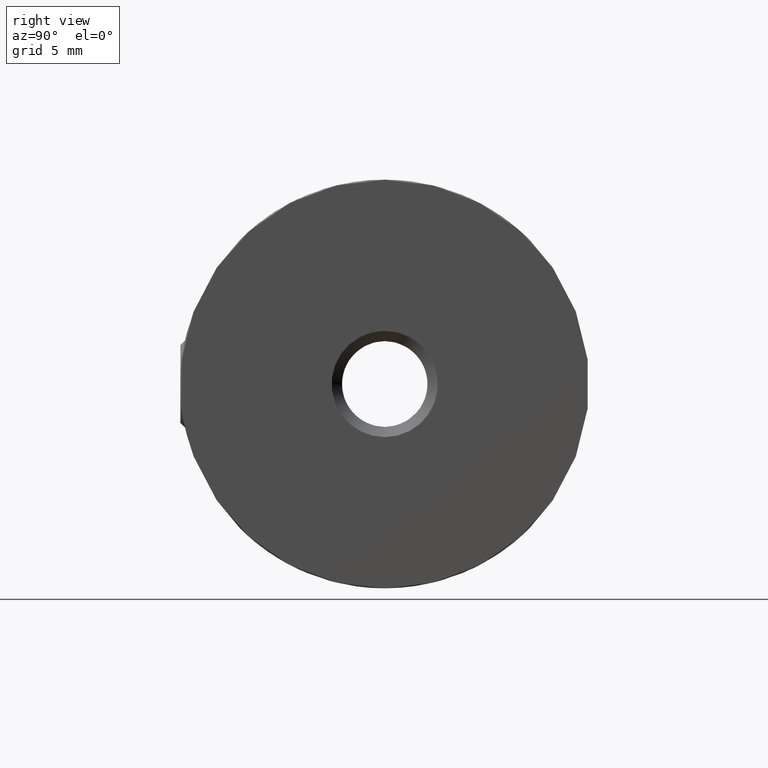
[diagram: clean part render]
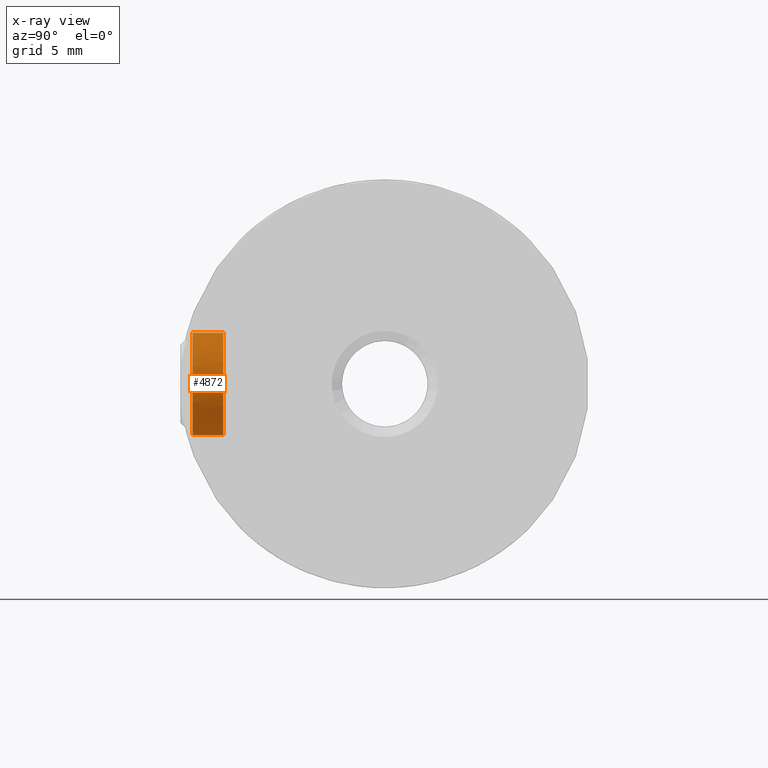
[diagram: x-ray — body ghosted, one internal face saturated and labeled with its STEP entity id]
A machine part, right view, then the same camera in x-ray: the body is ghosted and one INTERNAL B-rep face — a face not visible from any outside direction — is saturated and labeled: STEP entity #4872.
In plain terms, the highlighted cylindrical surface (partial cylindrical patch) has radius 2.5 mm, axis along (-0, 1, -0).
Its self-contained STEP definition (entity closure, byte-faithful):
#32 = CYLINDRICAL_SURFACE ( 'NONE', #3927, 2.500000000000000000 ) ;
#511 = DIRECTION ( 'NONE',  ( 0.000000000000000000, 0.000000000000000000, 1.000000000000000000 ) ) ;
#807 = ORIENTED_EDGE ( 'NONE', *, *, #11150, .T. ) ;
#1191 = CIRCLE ( 'NONE', #1555, 2.500000000000000000 ) ;
#1555 = AXIS2_PLACEMENT_3D ( 'NONE', #11062, #6524, #5341 ) ;
#1905 = LINE ( 'NONE', #13567, #10572 ) ;
#1995 = EDGE_CURVE ( 'NONE', #14791, #13390, #1905, .T. ) ;
#2078 = EDGE_CURVE ( 'NONE', #2701, #6468, #1191, .T. ) ;
#2155 = AXIS2_PLACEMENT_3D ( 'NONE', #7699, #10163, #14793 ) ;
#2192 = ORIENTED_EDGE ( 'NONE', *, *, #2078, .F. ) ;
#2698 = CARTESIAN_POINT ( 'NONE',  ( 3.000000000000000000, 3.061616997868383141E-16, -2.500000000000000000 ) ) ;
#2701 = VERTEX_POINT ( 'NONE', #6418 ) ;
#3912 = DIRECTION ( 'NONE',  ( -1.000000000000000000, -0.000000000000000000, -0.000000000000000000 ) ) ;
#3927 = AXIS2_PLACEMENT_3D ( 'NONE', #8590, #11017, #511 ) ;
#4102 = EDGE_CURVE ( 'NONE', #14791, #9937, #14588, .T. ) ;
#4271 = FACE_OUTER_BOUND ( 'NONE', #15206, .T. ) ;
#4443 = CARTESIAN_POINT ( 'NONE',  ( 2.399999999999998135, 0.000000000000000000, 2.500000000000000000 ) ) ;
#4872 = ADVANCED_FACE ( 'NONE', ( #4271 ), #32, .T. ) ;
#5316 = DIRECTION ( 'NONE',  ( -1.000000000000000000, 5.043320290719262910E-17, -0.000000000000000000 ) ) ;
#5341 = DIRECTION ( 'NONE',  ( -4.336808689942017736E-17, -1.000000000000000000, 0.000000000000000000 ) ) ;
#6418 = CARTESIAN_POINT ( 'NONE',  ( 0.8999999999999898082, 2.500000000000000000, 0.000000000000000000 ) ) ;
#6468 = VERTEX_POINT ( 'NONE', #10193 ) ;
#6524 = DIRECTION ( 'NONE',  ( -1.000000000000000000, 5.043320290719262910E-17, -0.000000000000000000 ) ) ;
#6576 = VECTOR ( 'NONE', #3912, 1000.000000000000000 ) ;
#7699 = CARTESIAN_POINT ( 'NONE',  ( 2.399999999999998135, 0.000000000000000000, 0.000000000000000000 ) ) ;
#8535 = ORIENTED_EDGE ( 'NONE', *, *, #11423, .F. ) ;
#8590 = CARTESIAN_POINT ( 'NONE',  ( 3.000000000000000000, 0.000000000000000000, 0.000000000000000000 ) ) ;
#9937 = VERTEX_POINT ( 'NONE', #11134 ) ;
#10135 = AXIS2_PLACEMENT_3D ( 'NONE', #12376, #5316, #14830 ) ;
#10163 = DIRECTION ( 'NONE',  ( -1.000000000000000000, 0.000000000000000000, 0.000000000000000000 ) ) ;
#10193 = CARTESIAN_POINT ( 'NONE',  ( 0.8999999999999896971, 3.061616997868383141E-16, -2.500000000000000000 ) ) ;
#10572 = VECTOR ( 'NONE', #11254, 1000.000000000000000 ) ;
#11017 = DIRECTION ( 'NONE',  ( -1.000000000000000000, -0.000000000000000000, -0.000000000000000000 ) ) ;
#11062 = CARTESIAN_POINT ( 'NONE',  ( 0.8999999999999896971, -4.538988261647284665E-17, 0.000000000000000000 ) ) ;
#11134 = CARTESIAN_POINT ( 'NONE',  ( 2.399999999999998135, 3.061616997868383141E-16, -2.500000000000000000 ) ) ;
#11150 = EDGE_CURVE ( 'NONE', #9937, #6468, #11932, .T. ) ;
#11232 = ORIENTED_EDGE ( 'NONE', *, *, #1995, .F. ) ;
#11254 = DIRECTION ( 'NONE',  ( -1.000000000000000000, -0.000000000000000000, -0.000000000000000000 ) ) ;
#11423 = EDGE_CURVE ( 'NONE', #13390, #2701, #12112, .T. ) ;
#11932 = LINE ( 'NONE', #2698, #6576 ) ;
#12112 = CIRCLE ( 'NONE', #10135, 2.500000000000000000 ) ;
#12138 = CARTESIAN_POINT ( 'NONE',  ( 0.8999999999999896971, -6.018531076210112041E-33, 2.500000000000000000 ) ) ;
#12376 = CARTESIAN_POINT ( 'NONE',  ( 0.8999999999999896971, -4.538988261647284665E-17, 0.000000000000000000 ) ) ;
#13390 = VERTEX_POINT ( 'NONE', #12138 ) ;
#13418 = ORIENTED_EDGE ( 'NONE', *, *, #4102, .T. ) ;
#13567 = CARTESIAN_POINT ( 'NONE',  ( 3.000000000000000000, 0.000000000000000000, 2.500000000000000000 ) ) ;
#14588 = CIRCLE ( 'NONE', #2155, 2.500000000000000000 ) ;
#14791 = VERTEX_POINT ( 'NONE', #4443 ) ;
#14793 = DIRECTION ( 'NONE',  ( 0.000000000000000000, 0.000000000000000000, -1.000000000000000000 ) ) ;
#14830 = DIRECTION ( 'NONE',  ( -4.336808689942017736E-17, -1.000000000000000000, 0.000000000000000000 ) ) ;
#15206 = EDGE_LOOP ( 'NONE', ( #13418, #807, #2192, #8535, #11232 ) ) ;